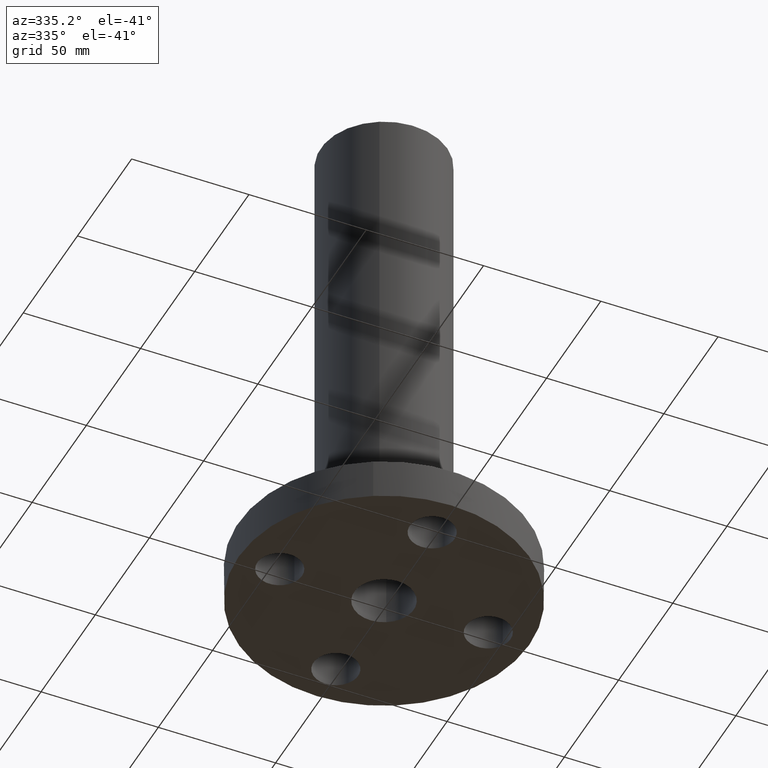
[diagram: clean part render]
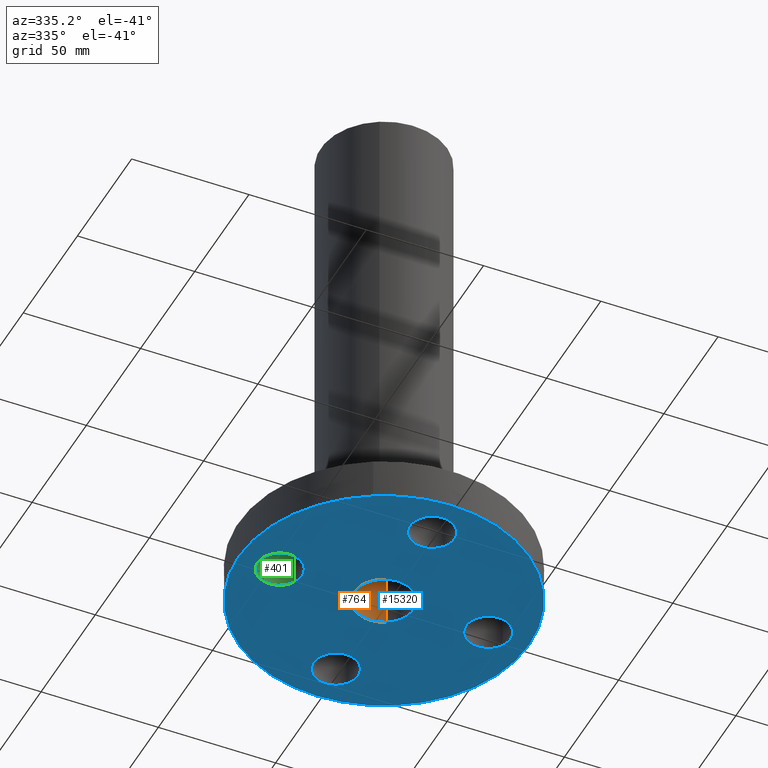
[diagram: same view with three faces highlighted in distinct colors, each labeled with its STEP entity id]
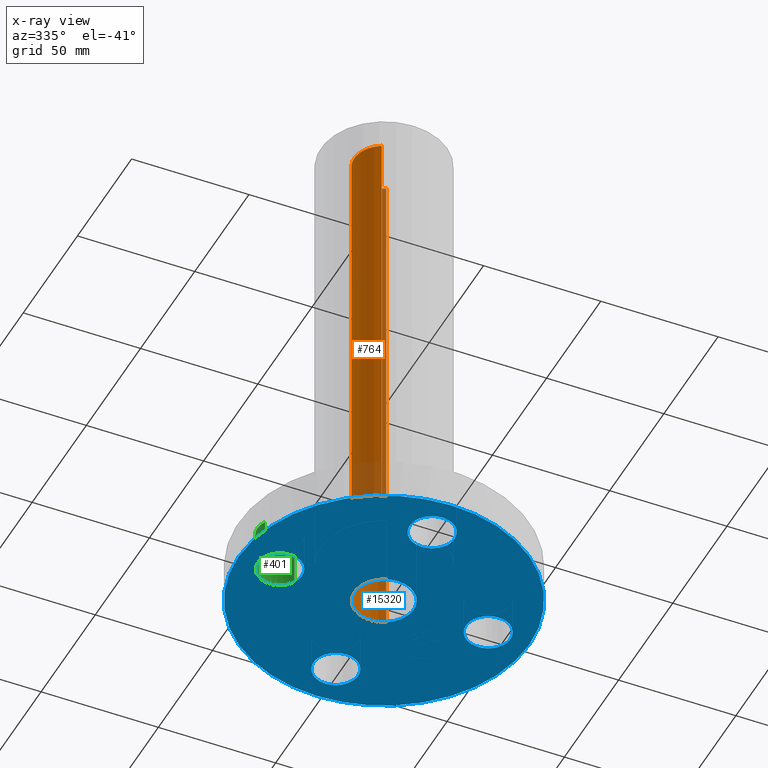
[diagram: x-ray of the same camera — body ghosted, the three highlighted faces saturated]
A machine part, auxiliary view with three faces highlighted in distinct colors.
The next image is the same camera in x-ray (body ghosted, the three faces saturated) — at least one of them is partly hidden behind the body in this view.
Their STEP definitions:

[orange] entity #764 — the highlighted cylindrical surface (edge-blend (fillet) strip) has radius 12.7 mm, axis along (0, 0, -1).
#526=AXIS2_PLACEMENT_3D('Circle Axis2P3D',#524,#525,$) ;
#725=AXIS2_PLACEMENT_3D('Cylinder Axis2P3D',#722,#723,#724) ;
#755=AXIS2_PLACEMENT_3D('Circle Axis2P3D',#753,#754,$) ;
#524=CARTESIAN_POINT('Axis2P3D Location',(0.,0.,8.75000000003)) ;
#528=CARTESIAN_POINT('Vertex',(-0.239712769303,-0.438791280947,8.75000000004)) ;
#530=CARTESIAN_POINT('Vertex',(0.239712769303,0.438791280947,8.75000000004)) ;
#722=CARTESIAN_POINT('Axis2P3D Location',(0.,0.,4.25000000002)) ;
#731=CARTESIAN_POINT('Vertex',(-0.239712769303,-0.438791280947,0.)) ;
#733=CARTESIAN_POINT('Vertex',(0.239712769303,0.438791280947,0.)) ;
#736=CARTESIAN_POINT('Line Origine',(-0.239712769303,-0.438791280947,4.37500000002)) ;
#741=CARTESIAN_POINT('Line Origine',(0.239712769303,0.438791280947,4.37500000002)) ;
#753=CARTESIAN_POINT('Axis2P3D Location',(0.,0.,0.)) ;
#525=DIRECTION('Axis2P3D Direction',(0.,0.,-0.0393700787402)) ;
#723=DIRECTION('Axis2P3D Direction',(0.,0.,-0.0393700787402)) ;
#724=DIRECTION('Axis2P3D XDirection',(-0.0188750212049,-0.0345504945626,0.)) ;
#737=DIRECTION('Vector Direction',(0.,0.,-0.0393700787402)) ;
#742=DIRECTION('Vector Direction',(0.,0.,-0.0393700787402)) ;
#754=DIRECTION('Axis2P3D Direction',(0.,0.,-0.0393700787402)) ;
#738=VECTOR('Line Direction',#737,0.0393700787402) ;
#743=VECTOR('Line Direction',#742,0.0393700787402) ;
#759=ORIENTED_EDGE('',*,*,#757,.F.) ;
#760=ORIENTED_EDGE('',*,*,#745,.F.) ;
#761=ORIENTED_EDGE('',*,*,#532,.F.) ;
#762=ORIENTED_EDGE('',*,*,#740,.T.) ;
#764=ADVANCED_FACE('PartBody',(#763),#726,.F.) ;
#527=CIRCLE('generated circle',#526,0.500000000002) ;
#756=CIRCLE('generated circle',#755,0.500000000002) ;
#726=CYLINDRICAL_SURFACE('generated cylinder',#725,0.500000000002) ;
#532=EDGE_CURVE('',#529,#531,#527,.T.) ;
#740=EDGE_CURVE('',#529,#732,#739,.T.) ;
#745=EDGE_CURVE('',#531,#734,#744,.T.) ;
#757=EDGE_CURVE('',#734,#732,#756,.F.) ;
#758=EDGE_LOOP('',(#759,#760,#761,#762)) ;
#763=FACE_OUTER_BOUND('',#758,.T.) ;
#739=LINE('Line',#736,#738) ;
#744=LINE('Line',#741,#743) ;
#529=VERTEX_POINT('',#528) ;
#531=VERTEX_POINT('',#530) ;
#732=VERTEX_POINT('',#731) ;
#734=VERTEX_POINT('',#733) ;

[blue] entity #15320 — the highlighted planar face has unit normal (0, 0, 1).
#65=AXIS2_PLACEMENT_3D('Circle Axis2P3D',#63,#64,$) ;
#82=AXIS2_PLACEMENT_3D('Circle Axis2P3D',#80,#81,$) ;
#217=AXIS2_PLACEMENT_3D('Circle Axis2P3D',#215,#216,$) ;
#226=AXIS2_PLACEMENT_3D('Circle Axis2P3D',#224,#225,$) ;
#233=AXIS2_PLACEMENT_3D('Circle Axis2P3D',#231,#232,$) ;
#259=AXIS2_PLACEMENT_3D('Circle Axis2P3D',#257,#258,$) ;
#266=AXIS2_PLACEMENT_3D('Circle Axis2P3D',#264,#265,$) ;
#273=AXIS2_PLACEMENT_3D('Circle Axis2P3D',#271,#272,$) ;
#349=AXIS2_PLACEMENT_3D('Circle Axis2P3D',#347,#348,$) ;
#361=AXIS2_PLACEMENT_3D('Circle Axis2P3D',#359,#360,$) ;
#392=AXIS2_PLACEMENT_3D('Circle Axis2P3D',#390,#391,$) ;
#404=AXIS2_PLACEMENT_3D('Circle Axis2P3D',#402,#403,$) ;
#435=AXIS2_PLACEMENT_3D('Circle Axis2P3D',#433,#434,$) ;
#447=AXIS2_PLACEMENT_3D('Circle Axis2P3D',#445,#446,$) ;
#729=AXIS2_PLACEMENT_3D('Circle Axis2P3D',#727,#728,$) ;
#755=AXIS2_PLACEMENT_3D('Circle Axis2P3D',#753,#754,$) ;
#15290=AXIS2_PLACEMENT_3D('Plane Axis2P3D',#15287,#15288,#15289) ;
#46=CARTESIAN_POINT('Vertex',(1.4209065393,-0.179784576977,2.2401153548E-016)) ;
#60=CARTESIAN_POINT('Vertex',(2.07909346072,0.179784576977,2.2401153548E-016)) ;
#63=CARTESIAN_POINT('Axis2P3D Location',(1.75000000001,0.,0.)) ;
#80=CARTESIAN_POINT('Axis2P3D Location',(1.75000000001,0.,0.)) ;
#215=CARTESIAN_POINT('Axis2P3D Location',(0.,0.,5.59482469102E-016)) ;
#219=CARTESIAN_POINT('Vertex',(1.49406909497E-016,2.44000000001,0.)) ;
#221=CARTESIAN_POINT('Vertex',(1.1697983142,2.14130145102,0.)) ;
#224=CARTESIAN_POINT('Axis2P3D Location',(0.,0.,5.59482469102E-016)) ;
#228=CARTESIAN_POINT('Vertex',(-2.44000000001,-2.98813818993E-016,0.)) ;
#231=CARTESIAN_POINT('Axis2P3D Location',(0.,0.,5.59482469102E-016)) ;
#235=CARTESIAN_POINT('Vertex',(-1.1697983142,-2.14130145102,0.)) ;
#257=CARTESIAN_POINT('Axis2P3D Location',(0.,0.,5.59482469102E-016)) ;
#261=CARTESIAN_POINT('Vertex',(-1.47595959856E-015,-2.44000000001,0.)) ;
#264=CARTESIAN_POINT('Axis2P3D Location',(0.,0.,5.59482469102E-016)) ;
#268=CARTESIAN_POINT('Vertex',(2.44000000001,-1.53857679003E-015,0.)) ;
#271=CARTESIAN_POINT('Axis2P3D Location',(0.,0.,5.59482469102E-016)) ;
#337=CARTESIAN_POINT('Vertex',(-0.179784576977,-1.4209065393,2.2401153548E-016)) ;
#344=CARTESIAN_POINT('Vertex',(0.179784576977,-2.07909346072,2.2401153548E-016)) ;
#347=CARTESIAN_POINT('Axis2P3D Location',(1.07156594926E-016,-1.75000000001,0.)) ;
#359=CARTESIAN_POINT('Axis2P3D Location',(1.07156594926E-016,-1.75000000001,0.)) ;
#380=CARTESIAN_POINT('Vertex',(-1.4209065393,0.179784576977,2.2401153548E-016)) ;
#387=CARTESIAN_POINT('Vertex',(-2.07909346072,-0.179784576977,2.2401153548E-016)) ;
#390=CARTESIAN_POINT('Axis2P3D Location',(-1.75000000001,-2.14313189852E-016,0.)) ;
#402=CARTESIAN_POINT('Axis2P3D Location',(-1.75000000001,-2.14313189852E-016,0.)) ;
#423=CARTESIAN_POINT('Vertex',(0.179784576977,1.4209065393,2.2401153548E-016)) ;
#430=CARTESIAN_POINT('Vertex',(-0.179784576977,2.07909346072,2.2401153548E-016)) ;
#433=CARTESIAN_POINT('Axis2P3D Location',(-3.21469784777E-016,1.75000000001,0.)) ;
#445=CARTESIAN_POINT('Axis2P3D Location',(-3.21469784777E-016,1.75000000001,0.)) ;
#727=CARTESIAN_POINT('Axis2P3D Location',(0.,0.,0.)) ;
#731=CARTESIAN_POINT('Vertex',(-0.239712769303,-0.438791280947,0.)) ;
#733=CARTESIAN_POINT('Vertex',(0.239712769303,0.438791280947,0.)) ;
#753=CARTESIAN_POINT('Axis2P3D Location',(0.,0.,0.)) ;
#15287=CARTESIAN_POINT('Axis2P3D Location',(0.,0.,0.)) ;
#64=DIRECTION('Axis2P3D Direction',(0.,-0.,0.0393700787402)) ;
#81=DIRECTION('Axis2P3D Direction',(0.,-0.,0.0393700787402)) ;
#216=DIRECTION('Axis2P3D Direction',(0.,0.,-0.0393700787402)) ;
#225=DIRECTION('Axis2P3D Direction',(0.,0.,-0.0393700787402)) ;
#232=DIRECTION('Axis2P3D Direction',(0.,0.,-0.0393700787402)) ;
#258=DIRECTION('Axis2P3D Direction',(0.,0.,-0.0393700787402)) ;
#265=DIRECTION('Axis2P3D Direction',(0.,0.,-0.0393700787402)) ;
#272=DIRECTION('Axis2P3D Direction',(0.,0.,-0.0393700787402)) ;
#348=DIRECTION('Axis2P3D Direction',(-0.,0.,0.0393700787402)) ;
#360=DIRECTION('Axis2P3D Direction',(-0.,0.,0.0393700787402)) ;
#391=DIRECTION('Axis2P3D Direction',(0.,0.,0.0393700787402)) ;
#403=DIRECTION('Axis2P3D Direction',(0.,0.,0.0393700787402)) ;
#434=DIRECTION('Axis2P3D Direction',(0.,0.,0.0393700787402)) ;
#446=DIRECTION('Axis2P3D Direction',(0.,0.,0.0393700787402)) ;
#728=DIRECTION('Axis2P3D Direction',(0.,0.,-0.0393700787402)) ;
#754=DIRECTION('Axis2P3D Direction',(0.,0.,-0.0393700787402)) ;
#15288=DIRECTION('Axis2P3D Direction',(0.,0.,0.0393700787402)) ;
#15289=DIRECTION('Axis2P3D XDirection',(0.0393700787402,0.,0.)) ;
#15293=ORIENTED_EDGE('',*,*,#263,.T.) ;
#15294=ORIENTED_EDGE('',*,*,#237,.T.) ;
#15295=ORIENTED_EDGE('',*,*,#230,.T.) ;
#15296=ORIENTED_EDGE('',*,*,#223,.T.) ;
#15297=ORIENTED_EDGE('',*,*,#275,.T.) ;
#15298=ORIENTED_EDGE('',*,*,#270,.T.) ;
#15301=ORIENTED_EDGE('',*,*,#437,.F.) ;
#15302=ORIENTED_EDGE('',*,*,#449,.F.) ;
#15305=ORIENTED_EDGE('',*,*,#394,.F.) ;
#15306=ORIENTED_EDGE('',*,*,#406,.F.) ;
#15309=ORIENTED_EDGE('',*,*,#351,.F.) ;
#15310=ORIENTED_EDGE('',*,*,#363,.F.) ;
#15313=ORIENTED_EDGE('',*,*,#84,.F.) ;
#15314=ORIENTED_EDGE('',*,*,#67,.F.) ;
#15317=ORIENTED_EDGE('',*,*,#757,.T.) ;
#15318=ORIENTED_EDGE('',*,*,#735,.T.) ;
#15303=FACE_BOUND('',#15300,.T.) ;
#15307=FACE_BOUND('',#15304,.T.) ;
#15311=FACE_BOUND('',#15308,.T.) ;
#15315=FACE_BOUND('',#15312,.T.) ;
#15319=FACE_BOUND('',#15316,.T.) ;
#15320=ADVANCED_FACE('PartBody',(#15299,#15303,#15307,#15311,#15315,#15319),#15291,.F.) ;
#66=CIRCLE('generated circle',#65,0.375000000001) ;
#83=CIRCLE('generated circle',#82,0.375000000001) ;
#218=CIRCLE('generated circle',#217,2.44000000001) ;
#227=CIRCLE('generated circle',#226,2.44000000001) ;
#234=CIRCLE('generated circle',#233,2.44000000001) ;
#260=CIRCLE('generated circle',#259,2.44000000001) ;
#267=CIRCLE('generated circle',#266,2.44000000001) ;
#274=CIRCLE('generated circle',#273,2.44000000001) ;
#350=CIRCLE('generated circle',#349,0.375000000001) ;
#362=CIRCLE('generated circle',#361,0.375000000001) ;
#393=CIRCLE('generated circle',#392,0.375000000002) ;
#405=CIRCLE('generated circle',#404,0.375000000002) ;
#436=CIRCLE('generated circle',#435,0.375000000001) ;
#448=CIRCLE('generated circle',#447,0.375000000001) ;
#730=CIRCLE('generated circle',#729,0.500000000002) ;
#756=CIRCLE('generated circle',#755,0.500000000002) ;
#67=EDGE_CURVE('',#61,#47,#66,.F.) ;
#84=EDGE_CURVE('',#47,#61,#83,.F.) ;
#223=EDGE_CURVE('',#220,#222,#218,.T.) ;
#230=EDGE_CURVE('',#229,#220,#227,.T.) ;
#237=EDGE_CURVE('',#236,#229,#234,.T.) ;
#263=EDGE_CURVE('',#262,#236,#260,.T.) ;
#270=EDGE_CURVE('',#269,#262,#267,.T.) ;
#275=EDGE_CURVE('',#222,#269,#274,.T.) ;
#351=EDGE_CURVE('',#345,#338,#350,.F.) ;
#363=EDGE_CURVE('',#338,#345,#362,.F.) ;
#394=EDGE_CURVE('',#388,#381,#393,.F.) ;
#406=EDGE_CURVE('',#381,#388,#405,.F.) ;
#437=EDGE_CURVE('',#431,#424,#436,.F.) ;
#449=EDGE_CURVE('',#424,#431,#448,.F.) ;
#735=EDGE_CURVE('',#732,#734,#730,.F.) ;
#757=EDGE_CURVE('',#734,#732,#756,.F.) ;
#15292=EDGE_LOOP('',(#15293,#15294,#15295,#15296,#15297,#15298)) ;
#15300=EDGE_LOOP('',(#15301,#15302)) ;
#15304=EDGE_LOOP('',(#15305,#15306)) ;
#15308=EDGE_LOOP('',(#15309,#15310)) ;
#15312=EDGE_LOOP('',(#15313,#15314)) ;
#15316=EDGE_LOOP('',(#15317,#15318)) ;
#15299=FACE_OUTER_BOUND('',#15292,.T.) ;
#15291=PLANE('',#15290) ;
#47=VERTEX_POINT('',#46) ;
#61=VERTEX_POINT('',#60) ;
#220=VERTEX_POINT('',#219) ;
#222=VERTEX_POINT('',#221) ;
#229=VERTEX_POINT('',#228) ;
#236=VERTEX_POINT('',#235) ;
#262=VERTEX_POINT('',#261) ;
#269=VERTEX_POINT('',#268) ;
#338=VERTEX_POINT('',#337) ;
#345=VERTEX_POINT('',#344) ;
#381=VERTEX_POINT('',#380) ;
#388=VERTEX_POINT('',#387) ;
#424=VERTEX_POINT('',#423) ;
#431=VERTEX_POINT('',#430) ;
#732=VERTEX_POINT('',#731) ;
#734=VERTEX_POINT('',#733) ;

[green] entity #401 — the highlighted cylindrical surface (edge-blend (fillet) strip) has radius 9.525 mm, axis along (0, 0, 1).
#166=AXIS2_PLACEMENT_3D('Circle Axis2P3D',#164,#165,$) ;
#374=AXIS2_PLACEMENT_3D('Cylinder Axis2P3D',#371,#372,#373) ;
#392=AXIS2_PLACEMENT_3D('Circle Axis2P3D',#390,#391,$) ;
#159=CARTESIAN_POINT('Vertex',(-1.4209065393,0.179784576977,0.690000000003)) ;
#161=CARTESIAN_POINT('Vertex',(-2.07909346072,-0.179784576977,0.690000000003)) ;
#164=CARTESIAN_POINT('Axis2P3D Location',(-1.75000000001,-2.79741234551E-016,0.690000000003)) ;
#371=CARTESIAN_POINT('Axis2P3D Location',(-1.75000000001,-2.14313189852E-016,0.00393700787402)) ;
#376=CARTESIAN_POINT('Line Origine',(-1.4209065393,0.179784576977,0.345000000001)) ;
#380=CARTESIAN_POINT('Vertex',(-1.4209065393,0.179784576977,2.2401153548E-016)) ;
#383=CARTESIAN_POINT('Line Origine',(-2.07909346072,-0.179784576977,0.345000000001)) ;
#387=CARTESIAN_POINT('Vertex',(-2.07909346072,-0.179784576977,2.2401153548E-016)) ;
#390=CARTESIAN_POINT('Axis2P3D Location',(-1.75000000001,-2.14313189852E-016,0.)) ;
#165=DIRECTION('Axis2P3D Direction',(0.,0.,-0.0393700787402)) ;
#372=DIRECTION('Axis2P3D Direction',(0.,0.,0.0393700787402)) ;
#373=DIRECTION('Axis2P3D XDirection',(-0.0345504945626,-0.0188750212049,0.)) ;
#377=DIRECTION('Vector Direction',(0.,0.,0.0393700787402)) ;
#384=DIRECTION('Vector Direction',(0.,0.,0.0393700787402)) ;
#391=DIRECTION('Axis2P3D Direction',(0.,0.,0.0393700787402)) ;
#378=VECTOR('Line Direction',#377,0.0393700787402) ;
#385=VECTOR('Line Direction',#384,0.0393700787402) ;
#396=ORIENTED_EDGE('',*,*,#382,.F.) ;
#397=ORIENTED_EDGE('',*,*,#168,.F.) ;
#398=ORIENTED_EDGE('',*,*,#389,.T.) ;
#399=ORIENTED_EDGE('',*,*,#394,.T.) ;
#401=ADVANCED_FACE('PartBody',(#400),#375,.F.) ;
#167=CIRCLE('generated circle',#166,0.375000000002) ;
#393=CIRCLE('generated circle',#392,0.375000000002) ;
#375=CYLINDRICAL_SURFACE('generated cylinder',#374,0.375000000002) ;
#168=EDGE_CURVE('',#162,#160,#167,.T.) ;
#382=EDGE_CURVE('',#160,#381,#379,.F.) ;
#389=EDGE_CURVE('',#162,#388,#386,.F.) ;
#394=EDGE_CURVE('',#388,#381,#393,.F.) ;
#395=EDGE_LOOP('',(#396,#397,#398,#399)) ;
#400=FACE_OUTER_BOUND('',#395,.T.) ;
#379=LINE('Line',#376,#378) ;
#386=LINE('Line',#383,#385) ;
#160=VERTEX_POINT('',#159) ;
#162=VERTEX_POINT('',#161) ;
#381=VERTEX_POINT('',#380) ;
#388=VERTEX_POINT('',#387) ;